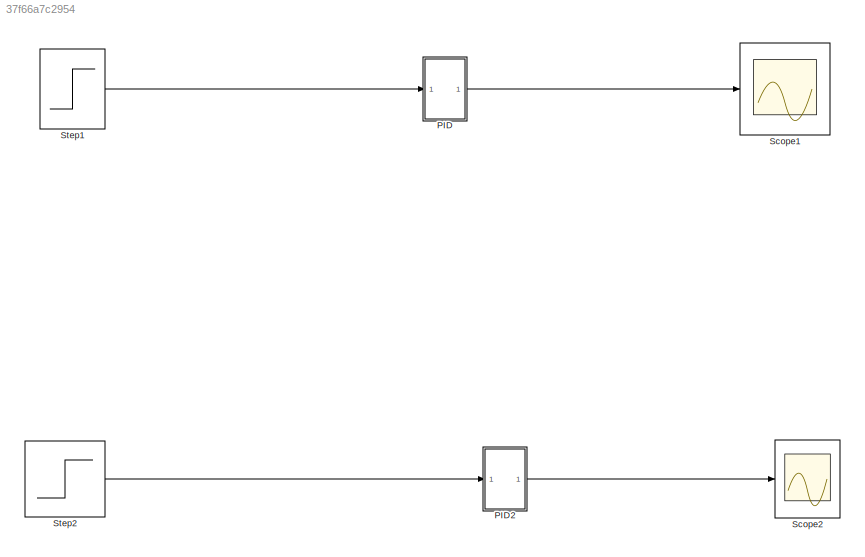
MODEL slx_37f66a7c2954
KIND model
CONFIG AbsTol = auto
CONFIG EnableMultiTasking = off
CONFIG FixedStep = auto
CONFIG MaxStep = auto
CONFIG MinStep = auto
CONFIG RelTol = 1e-3
CONFIG SampleTimeConstraint = Unconstrained
CONFIG SolverName = VariableStepAuto
CONFIG StartTime = 0.0
CONFIG StopTime = 10
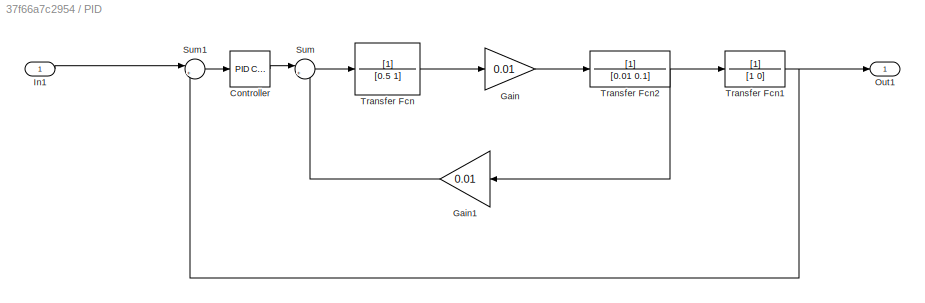
BLOCK [SubSystem] PID
BLOCK [Reference] PID/ Controller  REF=slpidlib/PID Controller
  LibrarySourceBlock = simulink/Continuous/PID Controller
  SourceBlock = slpidlib/PID Controller
  SourceType = PID 1dof
BLOCK [Gain] PID/Gain
  Gain = 0.01
BLOCK [Gain] PID/Gain1
  Gain = 0.01
BLOCK [Inport] PID/In1
BLOCK [Outport] PID/Out1
BLOCK [Sum] PID/Sum
  Inputs = |+-
BLOCK [Sum] PID/Sum1
  Inputs = |+-
BLOCK [TransferFcn] PID/Transfer Fcn
  Denominator = [0.5 1]
BLOCK [TransferFcn] PID/Transfer Fcn1
  Denominator = [1 0]
BLOCK [TransferFcn] PID/Transfer Fcn2
  Denominator = [0.01 0.1]
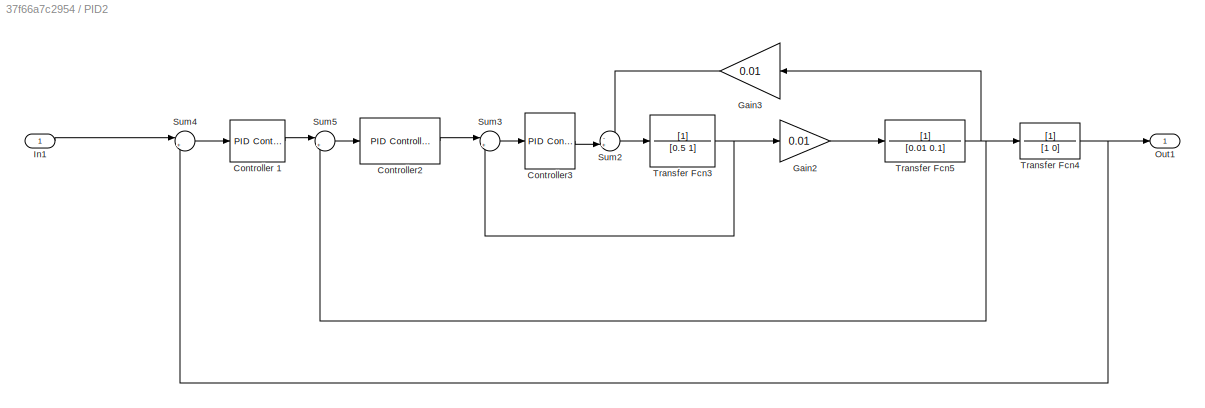
BLOCK [SubSystem] PID2
BLOCK [Reference] PID2/Controller 1  REF=slpidlib/PID Controller
  LibrarySourceBlock = simulink/Continuous/PID Controller
  SourceBlock = slpidlib/PID Controller
  SourceType = PID 1dof
BLOCK [Reference] PID2/Controller2  REF=slpidlib/PID Controller
  LibrarySourceBlock = simulink/Continuous/PID Controller
  SourceBlock = slpidlib/PID Controller
  SourceType = PID 1dof
BLOCK [Reference] PID2/Controller3  REF=slpidlib/PID Controller
  LibrarySourceBlock = simulink/Continuous/PID Controller
  SourceBlock = slpidlib/PID Controller
  SourceType = PID 1dof
BLOCK [Gain] PID2/Gain2
  Gain = 0.01
BLOCK [Gain] PID2/Gain3
  Gain = 0.01
BLOCK [Inport] PID2/In1
BLOCK [Outport] PID2/Out1
BLOCK [Sum] PID2/Sum2
  Inputs = -+|
BLOCK [Sum] PID2/Sum3
  Inputs = |+-
BLOCK [Sum] PID2/Sum4
  Inputs = |+-
BLOCK [Sum] PID2/Sum5
  Inputs = |+-
BLOCK [TransferFcn] PID2/Transfer Fcn3
  Denominator = [0.5 1]
BLOCK [TransferFcn] PID2/Transfer Fcn4
  Denominator = [1 0]
BLOCK [TransferFcn] PID2/Transfer Fcn5
  Denominator = [0.01 0.1]
BLOCK [Scope] Scope1
  Floating = off
  NumInputPorts = 1
  ScopeSpecificationString = Simulink.scopes.TimeScopeBlockCfg('CurrentConfiguration', extmgr.ConfigurationSet(extmgr.Configuration('Core','General UI',true),extmgr.Configuration('Core','Source UI',true),extmgr.Configuration('Sources','WiredSimulink',true),extmgr.Configuration('Visuals','Time Domain',true,'SerializedDisplays',{struct('MinYLimReal','-0.13711','MaxYLimReal','1.23401','YLabelReal','','MinYLimMag','0.00000','MaxY...<+1352ch>
BLOCK [Scope] Scope2
  Floating = off
  NumInputPorts = 1
  ScopeSpecificationString = Simulink.scopes.TimeScopeBlockCfg('CurrentConfiguration', extmgr.ConfigurationSet(extmgr.Configuration('Core','General UI',true),extmgr.Configuration('Core','Source UI',true),extmgr.Configuration('Sources','WiredSimulink',true,'DataLoggingVariableName','ScopeData1'),extmgr.Configuration('Visuals','Time Domain',true,'SerializedDisplays',{struct('MinYLimReal','-0.13802','MaxYLimReal','1.24222','YLab...<+1393ch>
BLOCK [Step] Step1
  SampleTime = 0
BLOCK [Step] Step2
  SampleTime = 0
LINE PID/ Controller:1 -> PID/Sum:1
LINE PID/Gain1:1 -> PID/Sum:2
LINE PID/Gain:1 -> PID/Transfer Fcn2:1
LINE PID/In1:1 -> PID/Sum1:1
LINE PID/Sum1:1 -> PID/ Controller:1
LINE PID/Sum:1 -> PID/Transfer Fcn:1
NET PID/Transfer Fcn1:1 -> PID/Out1:1, PID/Sum1:2
NET PID/Transfer Fcn2:1 -> PID/Gain1:1, PID/Transfer Fcn1:1
LINE PID/Transfer Fcn:1 -> PID/Gain:1
LINE PID2/Controller 1:1 -> PID2/Sum5:1
LINE PID2/Controller2:1 -> PID2/Sum3:1
LINE PID2/Controller3:1 -> PID2/Sum2:2
LINE PID2/Gain2:1 -> PID2/Transfer Fcn5:1
LINE PID2/Gain3:1 -> PID2/Sum2:1
LINE PID2/In1:1 -> PID2/Sum4:1
LINE PID2/Sum2:1 -> PID2/Transfer Fcn3:1
LINE PID2/Sum3:1 -> PID2/Controller3:1
LINE PID2/Sum4:1 -> PID2/Controller 1:1
LINE PID2/Sum5:1 -> PID2/Controller2:1
NET PID2/Transfer Fcn3:1 -> PID2/Gain2:1, PID2/Sum3:2
NET PID2/Transfer Fcn4:1 -> PID2/Out1:1, PID2/Sum4:2
NET PID2/Transfer Fcn5:1 -> PID2/Gain3:1, PID2/Sum5:2, PID2/Transfer Fcn4:1
LINE PID2:1 -> Scope2:1
LINE PID:1 -> Scope1:1
LINE Step1:1 -> PID:1
LINE Step2:1 -> PID2:1
note: NET lines group one-source signal fan-out (src -> all destinations, sorted); 1:1 wires keep LINE
